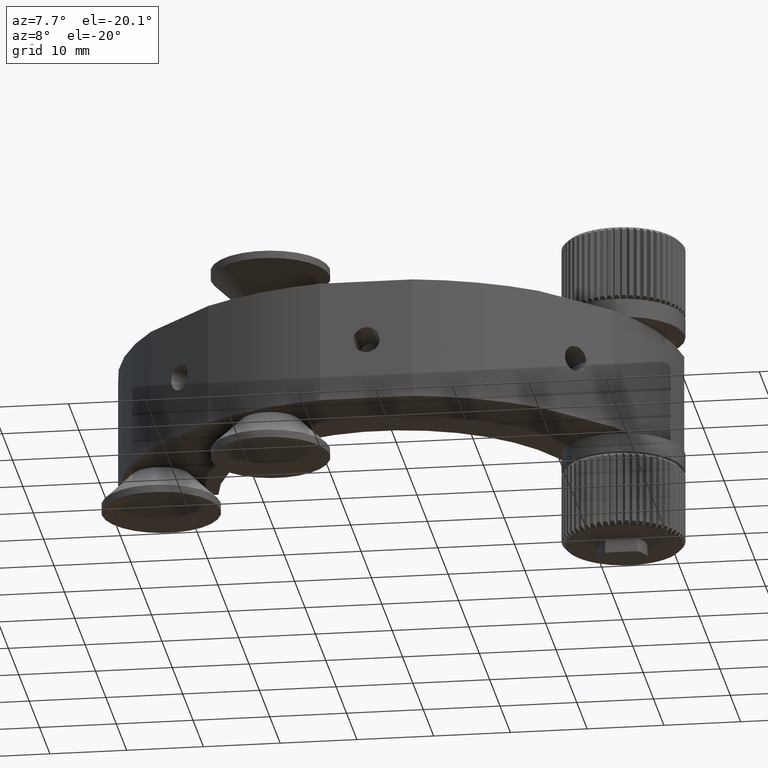
[diagram: clean part render]
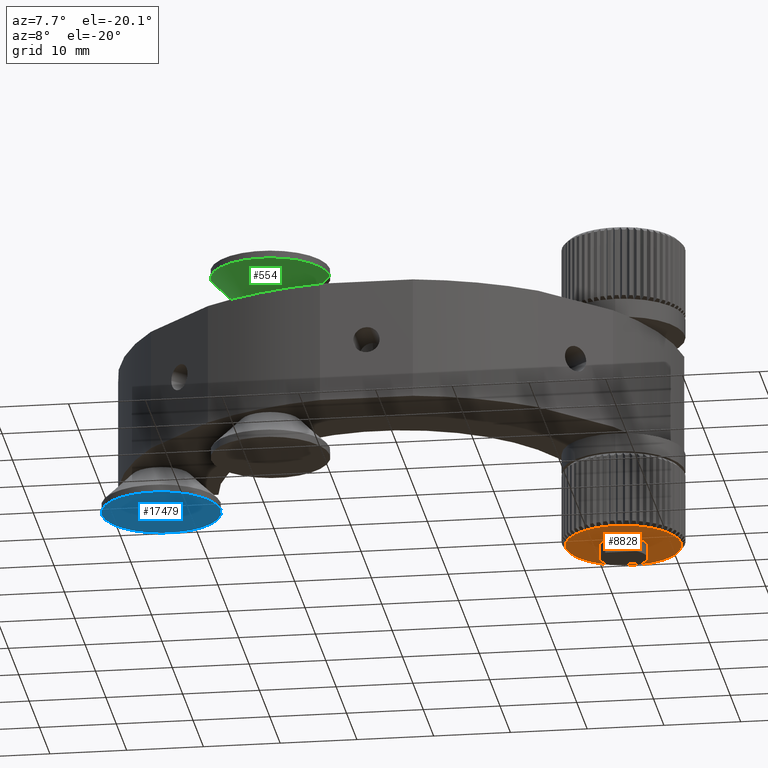
[diagram: same view with three faces highlighted in distinct colors, each labeled with its STEP entity id]
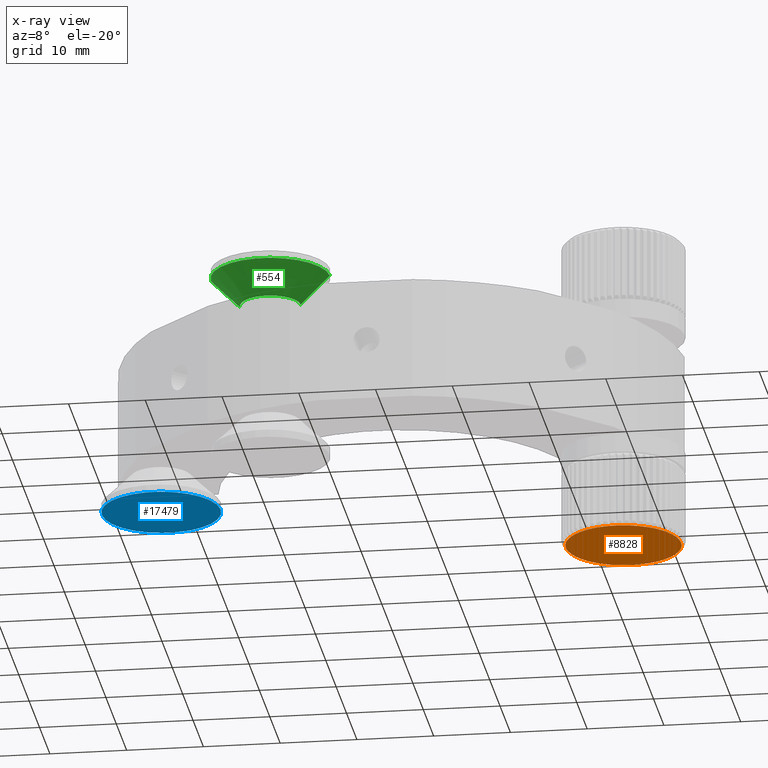
[diagram: x-ray of the same camera — body ghosted, the three highlighted faces saturated]
A machine part, auxiliary view with three faces highlighted in distinct colors.
The next image is the same camera in x-ray (body ghosted, the three faces saturated) — at least one of them is partly hidden behind the body in this view.
Their STEP definitions:

[orange] entity #8828 — the highlighted planar face has unit normal (-0, -0, 1).
#116 = CARTESIAN_POINT ( 'NONE',  ( 39.47517401282137700, -5.823701845742238700, -20.50000000000006000 ) ) ;
#234 = EDGE_CURVE ( 'NONE', #5738, #16654, #6889, .T. ) ;
#277 = CIRCLE ( 'NONE', #14672, 7.500000000000073700 ) ;
#322 = CARTESIAN_POINT ( 'NONE',  ( 32.72957168722360400, -9.101940590081939700, -20.50000000000000000 ) ) ;
#350 = DIRECTION ( 'NONE',  ( -0.3830490080632672500, 0.9237280213470558900, 0.0000000000000000000 ) ) ;
#353 = ORIENTED_EDGE ( 'NONE', *, *, #15208, .T. ) ;
#406 = VERTEX_POINT ( 'NONE', #3169 ) ;
#427 = CARTESIAN_POINT ( 'NONE',  ( 33.11542767546671200, -1.611872822942679500, -20.50000000000000000 ) ) ;
#436 = VERTEX_POINT ( 'NONE', #15813 ) ;
#443 = CIRCLE ( 'NONE', #11785, 7.500000000000073700 ) ;
#471 = DIRECTION ( 'NONE',  ( -0.3830490080632409400, 0.9237280213470668900, 0.0000000000000000000 ) ) ;
#495 = DIRECTION ( 'NONE',  ( -0.3830490080632237800, 0.9237280213470739900, 0.0000000000000000000 ) ) ;
#536 = AXIS2_PLACEMENT_3D ( 'NONE', #3741, #12033, #730 ) ;
#555 = CARTESIAN_POINT ( 'NONE',  ( 39.97954804502963800, -11.02231628542255100, -20.50000000000006000 ) ) ;
#590 = EDGE_CURVE ( 'NONE', #8415, #2034, #15115, .T. ) ;
#620 = AXIS2_PLACEMENT_3D ( 'NONE', #9010, #11620, #10455 ) ;
#626 = CARTESIAN_POINT ( 'NONE',  ( 26.86893603408883300, -4.421881857415523400, -20.50000000000000000 ) ) ;
#656 = ORIENTED_EDGE ( 'NONE', *, *, #9540, .T. ) ;
#712 = EDGE_CURVE ( 'NONE', #12995, #4908, #17945, .T. ) ;
#730 = DIRECTION ( 'NONE',  ( -0.3830490080632737400, 0.9237280213470533400, 0.0000000000000000000 ) ) ;
#772 = VERTEX_POINT ( 'NONE', #14137 ) ;
#776 = DIRECTION ( 'NONE',  ( -0.3830490080632278900, 0.9237280213470722100, 0.0000000000000000000 ) ) ;
#804 = ORIENTED_EDGE ( 'NONE', *, *, #2023, .T. ) ;
#836 = CARTESIAN_POINT ( 'NONE',  ( 32.72957168722360400, -9.101940590081939700, -20.50000000000000000 ) ) ;
#842 = DIRECTION ( 'NONE',  ( -0.3830490080632386100, 0.9237280213470678800, 0.0000000000000000000 ) ) ;
#846 = VERTEX_POINT ( 'NONE', #626 ) ;
#856 = VERTEX_POINT ( 'NONE', #6173 ) ;
#864 = DIRECTION ( 'NONE',  ( -0.3830490080632255600, 0.9237280213470732100, 0.0000000000000000000 ) ) ;
#940 = DIRECTION ( 'NONE',  ( 1.533387788057742900E-030, 1.224606353822375500E-016, -1.000000000000000000 ) ) ;
#979 = CIRCLE ( 'NONE', #13709, 7.500000000000073700 ) ;
#1029 = ORIENTED_EDGE ( 'NONE', *, *, #3494, .T. ) ;
#1058 = EDGE_CURVE ( 'NONE', #2401, #12654, #4888, .T. ) ;
#1071 = DIRECTION ( 'NONE',  ( 1.533387788057742900E-030, 1.224606353822375500E-016, -1.000000000000000000 ) ) ;
#1179 = DIRECTION ( 'NONE',  ( -0.3830490080632385500, 0.9237280213470678800, 0.0000000000000000000 ) ) ;
#1255 = DIRECTION ( 'NONE',  ( -0.3830490080632557000, 0.9237280213470607800, 0.0000000000000000000 ) ) ;
#1269 = EDGE_CURVE ( 'NONE', #7667, #14983, #3365, .T. ) ;
#1276 = VERTEX_POINT ( 'NONE', #7771 ) ;
#1367 = ORIENTED_EDGE ( 'NONE', *, *, #12162, .T. ) ;
#1396 = DIRECTION ( 'NONE',  ( 1.533387788057742900E-030, 1.224606353822375500E-016, -1.000000000000000000 ) ) ;
#1452 = CARTESIAN_POINT ( 'NONE',  ( 32.72957168722360400, -9.101940590081939700, -20.50000000000000000 ) ) ;
#1612 = CARTESIAN_POINT ( 'NONE',  ( 32.72957168722360400, -9.101940590081939700, -20.50000000000000000 ) ) ;
#1628 = DIRECTION ( 'NONE',  ( -0.3830490080632312200, 0.9237280213470709900, 0.0000000000000000000 ) ) ;
#1630 = DIRECTION ( 'NONE',  ( 1.533387788057742900E-030, 1.224606353822375500E-016, -1.000000000000000000 ) ) ;
#1660 = CARTESIAN_POINT ( 'NONE',  ( 35.39587907458436400, -16.11199086922449900, -20.49999999999994300 ) ) ;
#1665 = EDGE_CURVE ( 'NONE', #17967, #6967, #12451, .T. ) ;
#1678 = DIRECTION ( 'NONE',  ( -0.3830490080632385500, 0.9237280213470678800, 0.0000000000000000000 ) ) ;
#1682 = ORIENTED_EDGE ( 'NONE', *, *, #13326, .T. ) ;
#1712 = CIRCLE ( 'NONE', #2135, 7.500000000000072800 ) ;
#1851 = CARTESIAN_POINT ( 'NONE',  ( 32.72957168722360400, -9.101940590081939700, -20.50000000000000000 ) ) ;
#1872 = ORIENTED_EDGE ( 'NONE', *, *, #590, .T. ) ;
#1896 = EDGE_CURVE ( 'NONE', #4908, #1276, #979, .T. ) ;
#1905 = DIRECTION ( 'NONE',  ( 1.533387788057742900E-030, 1.224606353822375500E-016, -1.000000000000000000 ) ) ;
#1912 = ORIENTED_EDGE ( 'NONE', *, *, #2194, .T. ) ;
#1938 = CARTESIAN_POINT ( 'NONE',  ( 25.93361905156124800, -5.929397797015939300, -20.50000000000000000 ) ) ;
#2019 = CARTESIAN_POINT ( 'NONE',  ( 32.72957168722360400, -9.101940590081939700, -20.50000000000000000 ) ) ;
#2023 = EDGE_CURVE ( 'NONE', #16519, #4483, #7462, .T. ) ;
#2034 = VERTEX_POINT ( 'NONE', #2745 ) ;
#2044 = ORIENTED_EDGE ( 'NONE', *, *, #7427, .T. ) ;
#2045 = DIRECTION ( 'NONE',  ( -0.3830490080632270000, 0.9237280213470726600, 0.0000000000000000000 ) ) ;
#2135 = AXIS2_PLACEMENT_3D ( 'NONE', #7429, #5766, #471 ) ;
#2194 = EDGE_CURVE ( 'NONE', #5757, #5738, #4421, .T. ) ;
#2224 = DIRECTION ( 'NONE',  ( -0.3830490080632288400, 0.9237280213470718800, 0.0000000000000000000 ) ) ;
#2249 = DIRECTION ( 'NONE',  ( -0.3830490080632352700, 0.9237280213470692200, 0.0000000000000000000 ) ) ;
#2281 = DIRECTION ( 'NONE',  ( 1.533387788057742900E-030, 1.224606353822375500E-016, -1.000000000000000000 ) ) ;
#2333 = CARTESIAN_POINT ( 'NONE',  ( 26.35654588662725900, -5.147886702622265900, -20.50000000000000000 ) ) ;
#2347 = DIRECTION ( 'NONE',  ( 1.533387788057742900E-030, 1.224606353822375500E-016, -1.000000000000000000 ) ) ;
#2401 = VERTEX_POINT ( 'NONE', #14498 ) ;
#2441 = DIRECTION ( 'NONE',  ( 1.533387788057742900E-030, 1.224606353822375500E-016, -1.000000000000000000 ) ) ;
#2446 = AXIS2_PLACEMENT_3D ( 'NONE', #16163, #11999, #13403 ) ;
#2456 = DIRECTION ( 'NONE',  ( 1.533387788057742900E-030, 1.224606353822375500E-016, -1.000000000000000000 ) ) ;
#2494 = AXIS2_PLACEMENT_3D ( 'NONE', #5104, #17561, #5223 ) ;
#2503 = DIRECTION ( 'NONE',  ( -0.3830490080632255600, 0.9237280213470732100, 0.0000000000000000000 ) ) ;
#2513 = DIRECTION ( 'NONE',  ( 1.533387788057742900E-030, 1.224606353822375500E-016, -1.000000000000000000 ) ) ;
#2555 = ORIENTED_EDGE ( 'NONE', *, *, #15356, .T. ) ;
#2603 = DIRECTION ( 'NONE',  ( 1.533387788057742900E-030, 1.224606353822375500E-016, -1.000000000000000000 ) ) ;
#2639 = CARTESIAN_POINT ( 'NONE',  ( 32.72957168722360400, -9.101940590081939700, -20.50000000000000000 ) ) ;
#2703 = CIRCLE ( 'NONE', #536, 7.500000000000073700 ) ;
#2745 = CARTESIAN_POINT ( 'NONE',  ( 29.85670412674928200, -2.173980429978862100, -20.50000000000000000 ) ) ;
#2752 = CARTESIAN_POINT ( 'NONE',  ( 32.72957168722360400, -9.101940590081939700, -20.50000000000000000 ) ) ;
#2789 = EDGE_CURVE ( 'NONE', #6286, #772, #12671, .T. ) ;
#2827 = CARTESIAN_POINT ( 'NONE',  ( 32.72957168722360400, -9.101940590081939700, -20.50000000000000000 ) ) ;
#2865 = AXIS2_PLACEMENT_3D ( 'NONE', #8929, #4800, #2045 ) ;
#2872 = ORIENTED_EDGE ( 'NONE', *, *, #14065, .T. ) ;
#2876 = CARTESIAN_POINT ( 'NONE',  ( 25.32063916243499300, -10.26715252064653300, -20.50000000000000000 ) ) ;
#2890 = VERTEX_POINT ( 'NONE', #15789 ) ;
#2895 = CARTESIAN_POINT ( 'NONE',  ( 32.72957168722360400, -9.101940590081939700, -20.50000000000000000 ) ) ;
#2902 = DIRECTION ( 'NONE',  ( 1.533387788057742900E-030, 1.224606353822375500E-016, -1.000000000000000000 ) ) ;
#2946 = AXIS2_PLACEMENT_3D ( 'NONE', #6353, #9324, #2224 ) ;
#2967 = DIRECTION ( 'NONE',  ( 1.533387788057742900E-030, 1.224606353822375500E-016, -1.000000000000000000 ) ) ;
#2988 = ORIENTED_EDGE ( 'NONE', *, *, #12365, .T. ) ;
#3016 = ORIENTED_EDGE ( 'NONE', *, *, #6975, .T. ) ;
#3044 = CIRCLE ( 'NONE', #10159, 7.500000000000073700 ) ;
#3048 = CARTESIAN_POINT ( 'NONE',  ( 33.67472057292644600, -16.54214848931807000, -20.49999999999994300 ) ) ;
#3078 = EDGE_CURVE ( 'NONE', #12020, #16900, #12437, .T. ) ;
#3102 = EDGE_CURVE ( 'NONE', #16036, #856, #4639, .T. ) ;
#3103 = VERTEX_POINT ( 'NONE', #8832 ) ;
#3169 = CARTESIAN_POINT ( 'NONE',  ( 36.96784655451375600, -15.28959169121045200, -20.49999999999994300 ) ) ;
#3173 = VERTEX_POINT ( 'NONE', #14825 ) ;
#3201 = VERTEX_POINT ( 'NONE', #16246 ) ;
#3236 = EDGE_CURVE ( 'NONE', #7369, #8661, #11782, .T. ) ;
#3295 = DIRECTION ( 'NONE',  ( 1.533387788057742900E-030, 1.224606353822375500E-016, -1.000000000000000000 ) ) ;
#3304 = ORIENTED_EDGE ( 'NONE', *, *, #13299, .T. ) ;
#3309 = DIRECTION ( 'NONE',  ( 1.533387788057742900E-030, 1.224606353822375500E-016, -1.000000000000000000 ) ) ;
#3330 = DIRECTION ( 'NONE',  ( -0.3830490080632482600, 0.9237280213470638900, 0.0000000000000000000 ) ) ;
#3343 = CARTESIAN_POINT ( 'NONE',  ( 32.22684532409717700, -1.618808478203965300, -20.50000000000000000 ) ) ;
#3365 = CIRCLE ( 'NONE', #16621, 7.500000000000073700 ) ;
#3387 = ORIENTED_EDGE ( 'NONE', *, *, #11390, .T. ) ;
#3395 = DIRECTION ( 'NONE',  ( 1.533387788057742900E-030, 1.224606353822375500E-016, -1.000000000000000000 ) ) ;
#3494 = EDGE_CURVE ( 'NONE', #10359, #846, #5915, .T. ) ;
#3499 = VERTEX_POINT ( 'NONE', #4298 ) ;
#3507 = DIRECTION ( 'NONE',  ( -1.533387788057742900E-030, -1.224606353822375500E-016, 1.000000000000000000 ) ) ;
#3547 = DIRECTION ( 'NONE',  ( -0.3830490080632255600, 0.9237280213470732100, 0.0000000000000000000 ) ) ;
#3558 = CIRCLE ( 'NONE', #11909, 7.500000000000073700 ) ;
#3583 = ORIENTED_EDGE ( 'NONE', *, *, #1269, .T. ) ;
#3584 = EDGE_CURVE ( 'NONE', #2034, #5757, #9845, .T. ) ;
#3712 = CARTESIAN_POINT ( 'NONE',  ( 32.72957168722360400, -9.101940590081939700, -20.50000000000000000 ) ) ;
#3717 = ORIENTED_EDGE ( 'NONE', *, *, #4855, .T. ) ;
#3741 = CARTESIAN_POINT ( 'NONE',  ( 32.72957168722360400, -9.101940590081939700, -20.50000000000000000 ) ) ;
#3773 = CIRCLE ( 'NONE', #13639, 7.500000000000072800 ) ;
#3832 = DIRECTION ( 'NONE',  ( -0.3830490080632385500, 0.9237280213470678800, 0.0000000000000000000 ) ) ;
#3848 = DIRECTION ( 'NONE',  ( 1.533387788057742900E-030, 1.224606353822375500E-016, -1.000000000000000000 ) ) ;
#3879 = ORIENTED_EDGE ( 'NONE', *, *, #16506, .T. ) ;
#3894 = AXIS2_PLACEMENT_3D ( 'NONE', #13050, #4758, #3547 ) ;
#3932 = DIRECTION ( 'NONE',  ( -0.3830490080632352700, 0.9237280213470692200, 0.0000000000000000000 ) ) ;
#3967 = CARTESIAN_POINT ( 'NONE',  ( 32.72957168722360400, -9.101940590081939700, -20.50000000000000000 ) ) ;
#3993 = CARTESIAN_POINT ( 'NONE',  ( 37.91154384130750500, -3.680025375483037200, -20.50000000000000000 ) ) ;
#4036 = EDGE_CURVE ( 'NONE', #10242, #10195, #15039, .T. ) ;
#4046 = ORIENTED_EDGE ( 'NONE', *, *, #15354, .T. ) ;
#4097 = DIRECTION ( 'NONE',  ( -0.3830490080632385500, 0.9237280213470678800, 0.0000000000000000000 ) ) ;
#4123 = ORIENTED_EDGE ( 'NONE', *, *, #8995, .T. ) ;
#4130 = ORIENTED_EDGE ( 'NONE', *, *, #2789, .T. ) ;
#4202 = CIRCLE ( 'NONE', #4812, 7.500000000000074600 ) ;
#4298 = CARTESIAN_POINT ( 'NONE',  ( 40.05646425276273700, -7.499865269428233300, -20.50000000000006000 ) ) ;
#4350 = CARTESIAN_POINT ( 'NONE',  ( 30.48322683093668700, -1.946248115790224100, -20.50000000000000000 ) ) ;
#4421 = CIRCLE ( 'NONE', #15332, 7.500000000000073700 ) ;
#4466 = DIRECTION ( 'NONE',  ( -0.3830490080632639700, 0.9237280213470572300, 0.0000000000000000000 ) ) ;
#4483 = VERTEX_POINT ( 'NONE', #7974 ) ;
#4500 = VERTEX_POINT ( 'NONE', #7896 ) ;
#4507 = DIRECTION ( 'NONE',  ( -0.3830490080632344400, 0.9237280213470695500, 0.0000000000000000000 ) ) ;
#4516 = CARTESIAN_POINT ( 'NONE',  ( 32.72957168722360400, -9.101940590081939700, -20.50000000000000000 ) ) ;
#4531 = VERTEX_POINT ( 'NONE', #11991 ) ;
#4547 = DIRECTION ( 'NONE',  ( -0.3830490080632515400, 0.9237280213470624400, 0.0000000000000000000 ) ) ;
#4593 = CIRCLE ( 'NONE', #10249, 7.500000000000073700 ) ;
#4628 = DIRECTION ( 'NONE',  ( -0.3830490080632385500, 0.9237280213470678800, 0.0000000000000000000 ) ) ;
#4639 = CIRCLE ( 'NONE', #10561, 7.500000000000073700 ) ;
#4649 = CARTESIAN_POINT ( 'NONE',  ( 31.02488027689450700, -16.40564014548203500, -20.49999999999994300 ) ) ;
#4758 = DIRECTION ( 'NONE',  ( 1.533387788057742900E-030, 1.224606353822375500E-016, -1.000000000000000000 ) ) ;
#4770 = AXIS2_PLACEMENT_3D ( 'NONE', #1851, #11566, #4466 ) ;
#4782 = ORIENTED_EDGE ( 'NONE', *, *, #15309, .T. ) ;
#4798 = VERTEX_POINT ( 'NONE', #7630 ) ;
#4800 = DIRECTION ( 'NONE',  ( 1.533387788057742900E-030, 1.224606353822375500E-016, -1.000000000000000000 ) ) ;
#4812 = AXIS2_PLACEMENT_3D ( 'NONE', #9150, #17673, #864 ) ;
#4837 = ORIENTED_EDGE ( 'NONE', *, *, #7514, .T. ) ;
#4855 = EDGE_CURVE ( 'NONE', #14058, #4798, #15221, .T. ) ;
#4881 = CARTESIAN_POINT ( 'NONE',  ( 32.72957168722360400, -9.101940590081939700, -20.50000000000000000 ) ) ;
#4887 = CARTESIAN_POINT ( 'NONE',  ( 28.58840031310287300, -15.35499581534288000, -20.49999999999994300 ) ) ;
#4888 = CIRCLE ( 'NONE', #11037, 7.500000000000073700 ) ;
#4908 = VERTEX_POINT ( 'NONE', #16552 ) ;
#4909 = CARTESIAN_POINT ( 'NONE',  ( 30.17301363635605700, -16.15275692101443600, -20.49999999999994300 ) ) ;
#4913 = FACE_OUTER_BOUND ( 'NONE', #17149, .T. ) ;
#4952 = CARTESIAN_POINT ( 'NONE',  ( 28.13218003103875700, -3.176234728360166400, -20.50000000000000000 ) ) ;
#5075 = EDGE_CURVE ( 'NONE', #406, #17429, #17411, .T. ) ;
#5104 = CARTESIAN_POINT ( 'NONE',  ( 32.72957168722360400, -9.101940590081939700, -20.50000000000000000 ) ) ;
#5131 = CARTESIAN_POINT ( 'NONE',  ( 32.72957168722360400, -9.101940590081939700, -20.50000000000000000 ) ) ;
#5181 = DIRECTION ( 'NONE',  ( -0.3830490080632385500, 0.9237280213470678800, 0.0000000000000000000 ) ) ;
#5223 = DIRECTION ( 'NONE',  ( -0.3830490080632214500, 0.9237280213470749900, 0.0000000000000000000 ) ) ;
#5231 = CARTESIAN_POINT ( 'NONE',  ( 32.72957168722360400, -9.101940590081939700, -20.50000000000000000 ) ) ;
#5232 = AXIS2_PLACEMENT_3D ( 'NONE', #4881, #3309, #17275 ) ;
#5237 = DIRECTION ( 'NONE',  ( 1.533387788057742900E-030, 1.224606353822375500E-016, -1.000000000000000000 ) ) ;
#5283 = AXIS2_PLACEMENT_3D ( 'NONE', #12331, #12400, #4097 ) ;
#5312 = EDGE_CURVE ( 'NONE', #8684, #12774, #17860, .T. ) ;
#5401 = ORIENTED_EDGE ( 'NONE', *, *, #1665, .T. ) ;
#5443 = CARTESIAN_POINT ( 'NONE',  ( 33.99859345456810200, -1.710081300701001000, -20.50000000000000000 ) ) ;
#5497 = CARTESIAN_POINT ( 'NONE',  ( 25.60609249458804700, -6.755444437924718500, -20.50000000000000000 ) ) ;
#5592 = AXIS2_PLACEMENT_3D ( 'NONE', #2639, #5237, #5181 ) ;
#5632 = ORIENTED_EDGE ( 'NONE', *, *, #13777, .T. ) ;
#5669 = CIRCLE ( 'NONE', #8443, 7.500000000000074600 ) ;
#5674 = DIRECTION ( 'NONE',  ( -0.3830490080632302800, 0.9237280213470713300, 0.0000000000000000000 ) ) ;
#5681 = AXIS2_PLACEMENT_3D ( 'NONE', #14772, #2456, #10832 ) ;
#5738 = VERTEX_POINT ( 'NONE', #10041 ) ;
#5757 = VERTEX_POINT ( 'NONE', #4350 ) ;
#5766 = DIRECTION ( 'NONE',  ( 1.533387788057742900E-030, 1.224606353822375500E-016, -1.000000000000000000 ) ) ;
#5851 = ORIENTED_EDGE ( 'NONE', *, *, #3236, .T. ) ;
#5867 = DIRECTION ( 'NONE',  ( -0.3830490080632385500, 0.9237280213470678800, 0.0000000000000000000 ) ) ;
#5886 = CARTESIAN_POINT ( 'NONE',  ( 32.72957168722360400, -9.101940590081939700, -20.50000000000000000 ) ) ;
#5901 = CARTESIAN_POINT ( 'NONE',  ( 32.72957168722360400, -9.101940590081939700, -20.50000000000000000 ) ) ;
#5907 = AXIS2_PLACEMENT_3D ( 'NONE', #9767, #7091, #12640 ) ;
#5915 = CIRCLE ( 'NONE', #16986, 7.500000000000073700 ) ;
#5922 = DIRECTION ( 'NONE',  ( -0.3830490080632482600, 0.9237280213470638900, 0.0000000000000000000 ) ) ;
#5928 = CIRCLE ( 'NONE', #15268, 7.500000000000074600 ) ;
#5957 = EDGE_CURVE ( 'NONE', #4798, #2890, #13020, .T. ) ;
#5969 = DIRECTION ( 'NONE',  ( -0.3830490080632385500, 0.9237280213470678800, 0.0000000000000000000 ) ) ;
#5974 = AXIS2_PLACEMENT_3D ( 'NONE', #15008, #17829, #2503 ) ;
#6049 = CARTESIAN_POINT ( 'NONE',  ( 32.72957168722360400, -9.101940590081939700, -20.50000000000000000 ) ) ;
#6088 = VERTEX_POINT ( 'NONE', #11112 ) ;
#6173 = CARTESIAN_POINT ( 'NONE',  ( 34.54806364420159800, -16.37814062872898900, -20.49999999999994300 ) ) ;
#6233 = EDGE_CURVE ( 'NONE', #1276, #406, #3044, .T. ) ;
#6286 = VERTEX_POINT ( 'NONE', #555 ) ;
#6306 = AXIS2_PLACEMENT_3D ( 'NONE', #2895, #15271, #5674 ) ;
#6326 = CARTESIAN_POINT ( 'NONE',  ( 40.15579007991817000, -10.15135965985634100, -20.50000000000006000 ) ) ;
#6353 = CARTESIAN_POINT ( 'NONE',  ( 32.72957168722360400, -9.101940590081939700, -20.50000000000000000 ) ) ;
#6363 = AXIS2_PLACEMENT_3D ( 'NONE', #5901, #3507, #842 ) ;
#6377 = DIRECTION ( 'NONE',  ( -0.3830490080632473200, 0.9237280213470642200, 0.0000000000000000000 ) ) ;
#6632 = AXIS2_PLACEMENT_3D ( 'NONE', #11460, #12846, #1628 ) ;
#6633 = CARTESIAN_POINT ( 'NONE',  ( 32.72957168722360400, -9.101940590081939700, -20.50000000000000000 ) ) ;
#6677 = DIRECTION ( 'NONE',  ( 1.533387788057742900E-030, 1.224606353822375500E-016, -1.000000000000000000 ) ) ;
#6721 = EDGE_LOOP ( 'NONE', ( #8053, #2044 ) ) ;
#6741 = ORIENTED_EDGE ( 'NONE', *, *, #5075, .T. ) ;
#6765 = AXIS2_PLACEMENT_3D ( 'NONE', #322, #1630, #5867 ) ;
#6808 = CIRCLE ( 'NONE', #620, 7.500000000000074600 ) ;
#6870 = CARTESIAN_POINT ( 'NONE',  ( 25.80161152712055600, -11.97480815055623000, -20.50000000000000000 ) ) ;
#6889 = CIRCLE ( 'NONE', #5283, 7.500000000000073700 ) ;
#6953 = EDGE_CURVE ( 'NONE', #16900, #3201, #443, .T. ) ;
#6967 = VERTEX_POINT ( 'NONE', #7307 ) ;
#6975 = EDGE_CURVE ( 'NONE', #14983, #3173, #1712, .T. ) ;
#7012 = DIRECTION ( 'NONE',  ( 1.533387788057742900E-030, 1.224606353822375500E-016, -1.000000000000000000 ) ) ;
#7017 = CIRCLE ( 'NONE', #5592, 7.500000000000073700 ) ;
#7040 = CARTESIAN_POINT ( 'NONE',  ( 37.23390497139995100, -3.105192999507403700, -20.50000000000000000 ) ) ;
#7091 = DIRECTION ( 'NONE',  ( 1.533387788057742900E-030, 1.224606353822375500E-016, -1.000000000000000000 ) ) ;
#7097 = AXIS2_PLACEMENT_3D ( 'NONE', #2752, #13543, #15018 ) ;
#7213 = VERTEX_POINT ( 'NONE', #8245 ) ;
#7307 = CARTESIAN_POINT ( 'NONE',  ( 26.67023216509954900, -13.52171485531602900, -20.50000000000000000 ) ) ;
#7369 = VERTEX_POINT ( 'NONE', #427 ) ;
#7374 = DIRECTION ( 'NONE',  ( 1.533387788057742900E-030, 1.224606353822375500E-016, -1.000000000000000000 ) ) ;
#7427 = EDGE_CURVE ( 'NONE', #436, #17128, #9072, .T. ) ;
#7429 = CARTESIAN_POINT ( 'NONE',  ( 32.72957168722360400, -9.101940590081939700, -20.50000000000000000 ) ) ;
#7462 = CIRCLE ( 'NONE', #5907, 7.500000000000073700 ) ;
#7507 = DIRECTION ( 'NONE',  ( 1.533387788057742900E-030, 1.224606353822375500E-016, -1.000000000000000000 ) ) ;
#7514 = EDGE_CURVE ( 'NONE', #2890, #16106, #12982, .T. ) ;
#7521 = CARTESIAN_POINT ( 'NONE',  ( 32.72957168722360400, -9.101940590081939700, -20.50000000000000000 ) ) ;
#7630 = CARTESIAN_POINT ( 'NONE',  ( 25.23482843864553600, -9.382696067132807000, -20.50000000000000000 ) ) ;
#7642 = CIRCLE ( 'NONE', #10413, 7.500000000000073700 ) ;
#7643 = ORIENTED_EDGE ( 'NONE', *, *, #5957, .T. ) ;
#7650 = CARTESIAN_POINT ( 'NONE',  ( 29.65266727073086300, -2.262155563360011400, -20.50000000000000000 ) ) ;
#7667 = VERTEX_POINT ( 'NONE', #9619 ) ;
#7707 = CARTESIAN_POINT ( 'NONE',  ( 39.32564538005979700, -12.67150804828676100, -20.50000000000006000 ) ) ;
#7716 = AXIS2_PLACEMENT_3D ( 'NONE', #3967, #2513, #1255 ) ;
#7771 = CARTESIAN_POINT ( 'NONE',  ( 37.66993162643749600, -14.74488695443907800, -20.49999999999994300 ) ) ;
#7818 = ORIENTED_EDGE ( 'NONE', *, *, #13539, .T. ) ;
#7894 = ORIENTED_EDGE ( 'NONE', *, *, #12166, .T. ) ;
#7896 = CARTESIAN_POINT ( 'NONE',  ( 27.87789812793137800, -14.82131675134854700, -20.49999999999994300 ) ) ;
#7930 = AXIS2_PLACEMENT_3D ( 'NONE', #2827, #7012, #15258 ) ;
#7934 = AXIS2_PLACEMENT_3D ( 'NONE', #7521, #3395, #8921 ) ;
#7936 = DIRECTION ( 'NONE',  ( -0.3830490080632409400, 0.9237280213470668900, 0.0000000000000000000 ) ) ;
#7956 = AXIS2_PLACEMENT_3D ( 'NONE', #3712, #15727, #5922 ) ;
#7974 = CARTESIAN_POINT ( 'NONE',  ( 25.51045505829211600, -11.13525195283119000, -20.50000000000000000 ) ) ;
#8039 = ORIENTED_EDGE ( 'NONE', *, *, #15808, .T. ) ;
#8053 = ORIENTED_EDGE ( 'NONE', *, *, #10403, .T. ) ;
#8245 = CARTESIAN_POINT ( 'NONE',  ( 36.49303513580288400, -2.614541814670645600, -20.50000000000000000 ) ) ;
#8379 = DIRECTION ( 'NONE',  ( 1.533387788057742900E-030, 1.224606353822375500E-016, -1.000000000000000000 ) ) ;
#8415 = VERTEX_POINT ( 'NONE', #7650 ) ;
#8417 = VERTEX_POINT ( 'NONE', #7707 ) ;
#8425 = AXIS2_PLACEMENT_3D ( 'NONE', #17848, #10707, #10836 ) ;
#8443 = AXIS2_PLACEMENT_3D ( 'NONE', #17993, #15182, #17887 ) ;
#8646 = CARTESIAN_POINT ( 'NONE',  ( 25.37856397062044400, -7.614430741226740000, -20.50000000000000000 ) ) ;
#8657 = DIRECTION ( 'NONE',  ( -0.3830490080632385500, 0.9237280213470677700, 1.131203204145396700E-016 ) ) ;
#8661 = VERTEX_POINT ( 'NONE', #5443 ) ;
#8676 = CARTESIAN_POINT ( 'NONE',  ( 32.72957168722360400, -9.101940590081939700, -20.50000000000000000 ) ) ;
#8684 = VERTEX_POINT ( 'NONE', #5497 ) ;
#8708 = DIRECTION ( 'NONE',  ( -0.3830490080632418200, 0.9237280213470664400, 0.0000000000000000000 ) ) ;
#8808 = CARTESIAN_POINT ( 'NONE',  ( 35.69933452300137600, -2.214959488087151900, -20.50000000000000000 ) ) ;
#8828 = ADVANCED_FACE ( 'NONE', ( #4913, #10114 ), #16856, .F. ) ;
#8832 = CARTESIAN_POINT ( 'NONE',  ( 31.90067704810432000, -16.55599543809853800, -20.49999999999994300 ) ) ;
#8880 = AXIS2_PLACEMENT_3D ( 'NONE', #13325, #2281, #10474 ) ;
#8893 = DIRECTION ( 'NONE',  ( 1.533387788057742900E-030, 1.224606353822375500E-016, -1.000000000000000000 ) ) ;
#8921 = DIRECTION ( 'NONE',  ( -0.3830490080632533700, 0.9237280213470616700, 0.0000000000000000000 ) ) ;
#8929 = CARTESIAN_POINT ( 'NONE',  ( 32.72957168722360400, -9.101940590081939700, -20.50000000000000000 ) ) ;
#8995 = EDGE_CURVE ( 'NONE', #6088, #12300, #12057, .T. ) ;
#9010 = CARTESIAN_POINT ( 'NONE',  ( 32.72957168722360400, -9.101940590081939700, -20.50000000000000000 ) ) ;
#9063 = DIRECTION ( 'NONE',  ( 1.533387788057742900E-030, 1.224606353822375500E-016, -1.000000000000000000 ) ) ;
#9072 = CIRCLE ( 'NONE', #6363, 2.500000000000015100 ) ;
#9135 = CARTESIAN_POINT ( 'NONE',  ( 27.46359665944863300, -3.761574778000145200, -20.50000000000000000 ) ) ;
#9150 = CARTESIAN_POINT ( 'NONE',  ( 32.72957168722360400, -9.101940590081939700, -20.50000000000000000 ) ) ;
#9217 = CARTESIAN_POINT ( 'NONE',  ( 32.72957168722360400, -9.101940590081939700, -20.50000000000000000 ) ) ;
#9324 = DIRECTION ( 'NONE',  ( 1.533387788057742900E-030, 1.224606353822375500E-016, -1.000000000000000000 ) ) ;
#9372 = CARTESIAN_POINT ( 'NONE',  ( 32.72957168722360400, -9.101940590081939700, -20.50000000000000000 ) ) ;
#9456 = DIRECTION ( 'NONE',  ( 1.533387788057742900E-030, 1.224606353822375500E-016, -1.000000000000000000 ) ) ;
#9503 = ORIENTED_EDGE ( 'NONE', *, *, #1896, .T. ) ;
#9514 = DIRECTION ( 'NONE',  ( -0.3830490080632335000, 0.9237280213470699900, 0.0000000000000000000 ) ) ;
#9540 = EDGE_CURVE ( 'NONE', #12654, #7213, #15119, .T. ) ;
#9619 = CARTESIAN_POINT ( 'NONE',  ( 39.04009958643668200, -5.048887711910529300, -20.50000000000000000 ) ) ;
#9699 = CARTESIAN_POINT ( 'NONE',  ( 38.85716411002245300, -13.42659214830708700, -20.50000000000006000 ) ) ;
#9711 = ORIENTED_EDGE ( 'NONE', *, *, #11856, .T. ) ;
#9767 = CARTESIAN_POINT ( 'NONE',  ( 32.72957168722360400, -9.101940590081939700, -20.50000000000000000 ) ) ;
#9783 = EDGE_CURVE ( 'NONE', #4500, #17967, #17513, .T. ) ;
#9792 = DIRECTION ( 'NONE',  ( -0.3830490080632385500, 0.9237280213470678800, 0.0000000000000000000 ) ) ;
#9845 = CIRCLE ( 'NONE', #13487, 7.500000000000073700 ) ;
#9877 = ORIENTED_EDGE ( 'NONE', *, *, #3102, .T. ) ;
#9968 = DIRECTION ( 'NONE',  ( 1.533387788057742900E-030, 1.224606353822375500E-016, -1.000000000000000000 ) ) ;
#10013 = CARTESIAN_POINT ( 'NONE',  ( 32.72957168722360400, -9.101940590081939700, -20.50000000000000000 ) ) ;
#10041 = CARTESIAN_POINT ( 'NONE',  ( 31.34532014887613700, -1.730790905088124500, -20.50000000000000000 ) ) ;
#10085 = AXIS2_PLACEMENT_3D ( 'NONE', #16926, #12840, #495 ) ;
#10114 = FACE_BOUND ( 'NONE', #6721, .T. ) ;
#10159 = AXIS2_PLACEMENT_3D ( 'NONE', #6049, #10170, #3330 ) ;
#10170 = DIRECTION ( 'NONE',  ( 1.533387788057742900E-030, 1.224606353822375500E-016, -1.000000000000000000 ) ) ;
#10192 = CARTESIAN_POINT ( 'NONE',  ( 32.72957168722360400, -9.101940590081939700, -20.50000000000000000 ) ) ;
#10195 = VERTEX_POINT ( 'NONE', #10460 ) ;
#10219 = VERTEX_POINT ( 'NONE', #4887 ) ;
#10236 = AXIS2_PLACEMENT_3D ( 'NONE', #5131, #12158, #14832 ) ;
#10242 = VERTEX_POINT ( 'NONE', #4952 ) ;
#10249 = AXIS2_PLACEMENT_3D ( 'NONE', #17601, #2347, #12044 ) ;
#10297 = CARTESIAN_POINT ( 'NONE',  ( 40.19452002555458100, -8.377684899009565800, -20.50000000000006000 ) ) ;
#10359 = VERTEX_POINT ( 'NONE', #2333 ) ;
#10382 = ORIENTED_EDGE ( 'NONE', *, *, #15469, .T. ) ;
#10387 = AXIS2_PLACEMENT_3D ( 'NONE', #5231, #2441, #3832 ) ;
#10403 = EDGE_CURVE ( 'NONE', #17128, #436, #12264, .T. ) ;
#10413 = AXIS2_PLACEMENT_3D ( 'NONE', #11047, #11156, #8708 ) ;
#10455 = DIRECTION ( 'NONE',  ( -0.3830490080632352700, 0.9237280213470692200, 0.0000000000000000000 ) ) ;
#10460 = CARTESIAN_POINT ( 'NONE',  ( 28.86530070387492600, -2.674078599711307500, -20.50000000000000000 ) ) ;
#10474 = DIRECTION ( 'NONE',  ( -0.3830490080632427100, 0.9237280213470661100, 0.0000000000000000000 ) ) ;
#10561 = AXIS2_PLACEMENT_3D ( 'NONE', #2019, #9063, #776 ) ;
#10609 = AXIS2_PLACEMENT_3D ( 'NONE', #10013, #16722, #9792 ) ;
#10625 = ORIENTED_EDGE ( 'NONE', *, *, #11803, .T. ) ;
#10632 = EDGE_CURVE ( 'NONE', #4531, #10219, #13556, .T. ) ;
#10641 = AXIS2_PLACEMENT_3D ( 'NONE', #11898, #1071, #2249 ) ;
#10707 = DIRECTION ( 'NONE',  ( 1.533387788057742900E-030, 1.224606353822375500E-016, -1.000000000000000000 ) ) ;
#10776 = ORIENTED_EDGE ( 'NONE', *, *, #14654, .T. ) ;
#10832 = DIRECTION ( 'NONE',  ( -0.3830490080632427100, 0.9237280213470661100, 0.0000000000000000000 ) ) ;
#10836 = DIRECTION ( 'NONE',  ( -0.3830490080631769900, 0.9237280213470933100, 0.0000000000000000000 ) ) ;
#10875 = CARTESIAN_POINT ( 'NONE',  ( 32.72957168722360400, -9.101940590081939700, -20.50000000000000000 ) ) ;
#10929 = CIRCLE ( 'NONE', #6632, 7.500000000000072800 ) ;
#10977 = ORIENTED_EDGE ( 'NONE', *, *, #234, .T. ) ;
#11037 = AXIS2_PLACEMENT_3D ( 'NONE', #9217, #940, #16225 ) ;
#11047 = CARTESIAN_POINT ( 'NONE',  ( 32.72957168722360400, -9.101940590081939700, -20.50000000000000000 ) ) ;
#11112 = CARTESIAN_POINT ( 'NONE',  ( 40.22778428704473400, -9.265671490905399200, -20.50000000000006000 ) ) ;
#11156 = DIRECTION ( 'NONE',  ( 1.533387788057742900E-030, 1.224606353822375500E-016, -1.000000000000000000 ) ) ;
#11274 = CARTESIAN_POINT ( 'NONE',  ( 32.72957168722360400, -9.101940590081939700, -20.50000000000000000 ) ) ;
#11382 = DIRECTION ( 'NONE',  ( -1.060031841390734800E-030, -1.224606353822387100E-016, 1.000000000000000000 ) ) ;
#11383 = CARTESIAN_POINT ( 'NONE',  ( 32.72957168722360400, -9.101940590081939700, -20.50000000000000000 ) ) ;
#11390 = EDGE_CURVE ( 'NONE', #16654, #7369, #15733, .T. ) ;
#11460 = CARTESIAN_POINT ( 'NONE',  ( 32.72957168722360400, -9.101940590081939700, -20.50000000000000000 ) ) ;
#11484 = EDGE_CURVE ( 'NONE', #10195, #8415, #15278, .T. ) ;
#11486 = EDGE_CURVE ( 'NONE', #11716, #16712, #4202, .T. ) ;
#11488 = CARTESIAN_POINT ( 'NONE',  ( 32.72957168722360400, -9.101940590081939700, -20.50000000000000000 ) ) ;
#11504 = ORIENTED_EDGE ( 'NONE', *, *, #712, .T. ) ;
#11518 = ORIENTED_EDGE ( 'NONE', *, *, #10632, .T. ) ;
#11530 = ORIENTED_EDGE ( 'NONE', *, *, #17027, .T. ) ;
#11539 = CIRCLE ( 'NONE', #6306, 7.500000000000072800 ) ;
#11566 = DIRECTION ( 'NONE',  ( 1.533387788057742900E-030, 1.224606353822375500E-016, -1.000000000000000000 ) ) ;
#11576 = CIRCLE ( 'NONE', #10387, 7.500000000000073700 ) ;
#11620 = DIRECTION ( 'NONE',  ( 1.533387788057742900E-030, 1.224606353822375500E-016, -1.000000000000000000 ) ) ;
#11621 = DIRECTION ( 'NONE',  ( 1.533387788057742900E-030, 1.224606353822375500E-016, -1.000000000000000000 ) ) ;
#11693 = EDGE_CURVE ( 'NONE', #17429, #16036, #16594, .T. ) ;
#11705 = ORIENTED_EDGE ( 'NONE', *, *, #3078, .T. ) ;
#11716 = VERTEX_POINT ( 'NONE', #4649 ) ;
#11782 = CIRCLE ( 'NONE', #7097, 7.500000000000074600 ) ;
#11785 = AXIS2_PLACEMENT_3D ( 'NONE', #10192, #3295, #4507 ) ;
#11803 = EDGE_CURVE ( 'NONE', #846, #14761, #17905, .T. ) ;
#11856 = EDGE_CURVE ( 'NONE', #14455, #6088, #6808, .T. ) ;
#11898 = CARTESIAN_POINT ( 'NONE',  ( 32.72957168722360400, -9.101940590081939700, -20.50000000000000000 ) ) ;
#11909 = AXIS2_PLACEMENT_3D ( 'NONE', #6633, #12138, #6377 ) ;
#11922 = ORIENTED_EDGE ( 'NONE', *, *, #11693, .T. ) ;
#11991 = CARTESIAN_POINT ( 'NONE',  ( 29.35703546680742100, -15.80089569084070600, -20.49999999999994300 ) ) ;
#11999 = DIRECTION ( 'NONE',  ( 1.533387788057742900E-030, 1.224606353822375500E-016, -1.000000000000000000 ) ) ;
#12005 = CARTESIAN_POINT ( 'NONE',  ( 36.20626539386640300, -15.74743537002052600, -20.49999999999994300 ) ) ;
#12020 = VERTEX_POINT ( 'NONE', #7040 ) ;
#12033 = DIRECTION ( 'NONE',  ( 1.533387788057742900E-030, 1.224606353822375500E-016, -1.000000000000000000 ) ) ;
#12044 = DIRECTION ( 'NONE',  ( -0.3830490080632385500, 0.9237280213470678800, 0.0000000000000000000 ) ) ;
#12057 = CIRCLE ( 'NONE', #2446, 7.500000000000074600 ) ;
#12138 = DIRECTION ( 'NONE',  ( 1.533387788057742900E-030, 1.224606353822375500E-016, -1.000000000000000000 ) ) ;
#12158 = DIRECTION ( 'NONE',  ( -1.533387788057742900E-030, -1.224606353822375500E-016, 1.000000000000000000 ) ) ;
#12161 = ORIENTED_EDGE ( 'NONE', *, *, #3584, .T. ) ;
#12162 = EDGE_CURVE ( 'NONE', #14492, #16519, #10929, .T. ) ;
#12166 = EDGE_CURVE ( 'NONE', #3103, #11716, #14817, .T. ) ;
#12170 = CARTESIAN_POINT ( 'NONE',  ( 32.72957168722360400, -9.101940590081939700, -20.50000000000000000 ) ) ;
#12264 = CIRCLE ( 'NONE', #10236, 2.500000000000015100 ) ;
#12300 = VERTEX_POINT ( 'NONE', #6326 ) ;
#12331 = CARTESIAN_POINT ( 'NONE',  ( 32.72957168722360400, -9.101940590081939700, -20.50000000000000000 ) ) ;
#12365 = EDGE_CURVE ( 'NONE', #10219, #4500, #7017, .T. ) ;
#12400 = DIRECTION ( 'NONE',  ( 1.533387788057742900E-030, 1.224606353822375500E-016, -1.000000000000000000 ) ) ;
#12437 = CIRCLE ( 'NONE', #5232, 7.500000000000073700 ) ;
#12451 = CIRCLE ( 'NONE', #10085, 7.500000000000073700 ) ;
#12553 = VERTEX_POINT ( 'NONE', #3048 ) ;
#12597 = CARTESIAN_POINT ( 'NONE',  ( 26.19002137032094900, -12.77403558513566200, -20.50000000000000000 ) ) ;
#12640 = DIRECTION ( 'NONE',  ( -0.3830490080632385500, 0.9237280213470678800, 0.0000000000000000000 ) ) ;
#12654 = VERTEX_POINT ( 'NONE', #8808 ) ;
#12671 = CIRCLE ( 'NONE', #6765, 7.500000000000073700 ) ;
#12774 = VERTEX_POINT ( 'NONE', #1938 ) ;
#12840 = DIRECTION ( 'NONE',  ( 1.533387788057742900E-030, 1.224606353822375500E-016, -1.000000000000000000 ) ) ;
#12846 = DIRECTION ( 'NONE',  ( 1.533387788057742900E-030, 1.224606353822375500E-016, -1.000000000000000000 ) ) ;
#12871 = CIRCLE ( 'NONE', #3894, 7.500000000000074600 ) ;
#12982 = CIRCLE ( 'NONE', #5681, 7.500000000000073700 ) ;
#12995 = VERTEX_POINT ( 'NONE', #9699 ) ;
#13020 = CIRCLE ( 'NONE', #2494, 7.500000000000073700 ) ;
#13050 = CARTESIAN_POINT ( 'NONE',  ( 32.72957168722360400, -9.101940590081939700, -20.50000000000000000 ) ) ;
#13154 = ORIENTED_EDGE ( 'NONE', *, *, #11486, .T. ) ;
#13202 = ORIENTED_EDGE ( 'NONE', *, *, #6953, .T. ) ;
#13276 = ORIENTED_EDGE ( 'NONE', *, *, #4036, .T. ) ;
#13299 = EDGE_CURVE ( 'NONE', #4483, #14058, #4593, .T. ) ;
#13325 = CARTESIAN_POINT ( 'NONE',  ( 32.72957168722360400, -9.101940590081939700, -20.50000000000000000 ) ) ;
#13326 = EDGE_CURVE ( 'NONE', #7213, #12020, #15464, .T. ) ;
#13403 = DIRECTION ( 'NONE',  ( -0.3830490080632352700, 0.9237280213470692200, 0.0000000000000000000 ) ) ;
#13457 = EDGE_CURVE ( 'NONE', #772, #8417, #11539, .T. ) ;
#13487 = AXIS2_PLACEMENT_3D ( 'NONE', #14225, #11621, #5969 ) ;
#13539 = EDGE_CURVE ( 'NONE', #14761, #10242, #277, .T. ) ;
#13543 = DIRECTION ( 'NONE',  ( 1.533387788057742900E-030, 1.224606353822375500E-016, -1.000000000000000000 ) ) ;
#13556 = CIRCLE ( 'NONE', #13964, 7.500000000000073700 ) ;
#13639 = AXIS2_PLACEMENT_3D ( 'NONE', #17232, #7507, #15902 ) ;
#13709 = AXIS2_PLACEMENT_3D ( 'NONE', #14992, #6677, #15050 ) ;
#13774 = CIRCLE ( 'NONE', #10609, 7.500000000000073700 ) ;
#13777 = EDGE_CURVE ( 'NONE', #3201, #7667, #5928, .T. ) ;
#13859 = ORIENTED_EDGE ( 'NONE', *, *, #1058, .T. ) ;
#13899 = VERTEX_POINT ( 'NONE', #17768 ) ;
#13927 = ORIENTED_EDGE ( 'NONE', *, *, #6233, .T. ) ;
#13955 = AXIS2_PLACEMENT_3D ( 'NONE', #8676, #2967, #4547 ) ;
#13964 = AXIS2_PLACEMENT_3D ( 'NONE', #4516, #9968, #350 ) ;
#13981 = DIRECTION ( 'NONE',  ( 1.533387788057742900E-030, 1.224606353822375500E-016, -1.000000000000000000 ) ) ;
#13984 = AXIS2_PLACEMENT_3D ( 'NONE', #10875, #8379, #16355 ) ;
#14048 = ORIENTED_EDGE ( 'NONE', *, *, #11484, .T. ) ;
#14058 = VERTEX_POINT ( 'NONE', #2876 ) ;
#14065 = EDGE_CURVE ( 'NONE', #12774, #10359, #13774, .T. ) ;
#14137 = CARTESIAN_POINT ( 'NONE',  ( 39.70153223422161700, -11.86631504574160800, -20.50000000000006000 ) ) ;
#14225 = CARTESIAN_POINT ( 'NONE',  ( 32.72957168722360400, -9.101940590081939700, -20.50000000000000000 ) ) ;
#14455 = VERTEX_POINT ( 'NONE', #10297 ) ;
#14479 = AXIS2_PLACEMENT_3D ( 'NONE', #16620, #1396, #3932 ) ;
#14492 = VERTEX_POINT ( 'NONE', #12597 ) ;
#14498 = CARTESIAN_POINT ( 'NONE',  ( 34.86394494978597400, -1.912055279726813100, -20.50000000000000000 ) ) ;
#14654 = EDGE_CURVE ( 'NONE', #12553, #13899, #3773, .T. ) ;
#14672 = AXIS2_PLACEMENT_3D ( 'NONE', #11383, #1905, #15829 ) ;
#14679 = EDGE_CURVE ( 'NONE', #856, #12553, #2703, .T. ) ;
#14761 = VERTEX_POINT ( 'NONE', #9135 ) ;
#14772 = CARTESIAN_POINT ( 'NONE',  ( 32.72957168722360400, -9.101940590081939700, -20.50000000000000000 ) ) ;
#14817 = CIRCLE ( 'NONE', #13955, 7.500000000000073700 ) ;
#14825 = CARTESIAN_POINT ( 'NONE',  ( 39.81555496909739100, -6.644535265556545900, -20.50000000000006000 ) ) ;
#14832 = DIRECTION ( 'NONE',  ( -0.3830490080632386100, 0.9237280213470678800, 0.0000000000000000000 ) ) ;
#14983 = VERTEX_POINT ( 'NONE', #116 ) ;
#14992 = CARTESIAN_POINT ( 'NONE',  ( 32.72957168722360400, -9.101940590081939700, -20.50000000000000000 ) ) ;
#15008 = CARTESIAN_POINT ( 'NONE',  ( 32.72957168722360400, -9.101940590081939700, -20.50000000000000000 ) ) ;
#15018 = DIRECTION ( 'NONE',  ( -0.3830490080632371600, 0.9237280213470684400, 0.0000000000000000000 ) ) ;
#15039 = CIRCLE ( 'NONE', #7930, 7.500000000000074600 ) ;
#15050 = DIRECTION ( 'NONE',  ( -0.3830490080632482600, 0.9237280213470638900, 0.0000000000000000000 ) ) ;
#15115 = CIRCLE ( 'NONE', #8425, 7.500000000000074600 ) ;
#15119 = CIRCLE ( 'NONE', #16554, 7.500000000000072800 ) ;
#15182 = DIRECTION ( 'NONE',  ( 1.533387788057742900E-030, 1.224606353822375500E-016, -1.000000000000000000 ) ) ;
#15208 = EDGE_CURVE ( 'NONE', #16712, #4531, #12871, .T. ) ;
#15221 = CIRCLE ( 'NONE', #7716, 7.500000000000072800 ) ;
#15258 = DIRECTION ( 'NONE',  ( -0.3830490080632542600, 0.9237280213470612200, 0.0000000000000000000 ) ) ;
#15268 = AXIS2_PLACEMENT_3D ( 'NONE', #836, #8893, #15997 ) ;
#15271 = DIRECTION ( 'NONE',  ( 1.533387788057742900E-030, 1.224606353822375500E-016, -1.000000000000000000 ) ) ;
#15278 = CIRCLE ( 'NONE', #2946, 7.500000000000073700 ) ;
#15309 = EDGE_CURVE ( 'NONE', #8661, #2401, #16591, .T. ) ;
#15332 = AXIS2_PLACEMENT_3D ( 'NONE', #11488, #7374, #4628 ) ;
#15354 = EDGE_CURVE ( 'NONE', #6967, #14492, #11576, .T. ) ;
#15356 = EDGE_CURVE ( 'NONE', #8417, #12995, #3558, .T. ) ;
#15464 = CIRCLE ( 'NONE', #15882, 7.500000000000072800 ) ;
#15469 = EDGE_CURVE ( 'NONE', #16106, #8684, #17457, .T. ) ;
#15620 = ORIENTED_EDGE ( 'NONE', *, *, #5312, .T. ) ;
#15625 = DIRECTION ( 'NONE',  ( -0.3830490080632075700, 0.9237280213470806500, 0.0000000000000000000 ) ) ;
#15674 = CIRCLE ( 'NONE', #14479, 7.500000000000074600 ) ;
#15686 = DIRECTION ( 'NONE',  ( 1.533387788057742900E-030, 1.224606353822375500E-016, -1.000000000000000000 ) ) ;
#15727 = DIRECTION ( 'NONE',  ( 1.533387788057742900E-030, 1.224606353822375500E-016, -1.000000000000000000 ) ) ;
#15733 = CIRCLE ( 'NONE', #8880, 7.500000000000073700 ) ;
#15753 = ORIENTED_EDGE ( 'NONE', *, *, #17150, .T. ) ;
#15789 = CARTESIAN_POINT ( 'NONE',  ( 25.25422748138629100, -8.494298422144869000, -20.50000000000000000 ) ) ;
#15808 = EDGE_CURVE ( 'NONE', #13899, #3103, #17680, .T. ) ;
#15813 = CARTESIAN_POINT ( 'NONE',  ( 33.68719420738170100, -11.41126064344959800, -20.50000000000000000 ) ) ;
#15829 = DIRECTION ( 'NONE',  ( -0.3830490080632131300, 0.9237280213470784300, 0.0000000000000000000 ) ) ;
#15834 = AXIS2_PLACEMENT_3D ( 'NONE', #1612, #11382, #8657 ) ;
#15882 = AXIS2_PLACEMENT_3D ( 'NONE', #12170, #2603, #9514 ) ;
#15902 = DIRECTION ( 'NONE',  ( -0.3830490080632261200, 0.9237280213470731000, 0.0000000000000000000 ) ) ;
#15997 = DIRECTION ( 'NONE',  ( -0.3830490080632362200, 0.9237280213470688800, 0.0000000000000000000 ) ) ;
#16036 = VERTEX_POINT ( 'NONE', #1660 ) ;
#16087 = CARTESIAN_POINT ( 'NONE',  ( 32.72957168722360400, -9.101940590081939700, -20.50000000000000000 ) ) ;
#16106 = VERTEX_POINT ( 'NONE', #8646 ) ;
#16163 = CARTESIAN_POINT ( 'NONE',  ( 32.72957168722360400, -9.101940590081939700, -20.50000000000000000 ) ) ;
#16225 = DIRECTION ( 'NONE',  ( -0.3830490080632418200, 0.9237280213470664400, 0.0000000000000000000 ) ) ;
#16246 = CARTESIAN_POINT ( 'NONE',  ( 38.51643918119477700, -4.330969556086879300, -20.50000000000000000 ) ) ;
#16355 = DIRECTION ( 'NONE',  ( -0.3830490080632302800, 0.9237280213470713300, 0.0000000000000000000 ) ) ;
#16440 = AXIS2_PLACEMENT_3D ( 'NONE', #1452, #13981, #16748 ) ;
#16450 = ORIENTED_EDGE ( 'NONE', *, *, #13457, .T. ) ;
#16506 = EDGE_CURVE ( 'NONE', #12300, #6286, #5669, .T. ) ;
#16519 = VERTEX_POINT ( 'NONE', #6870 ) ;
#16552 = CARTESIAN_POINT ( 'NONE',  ( 38.30266487421720700, -14.12096762020308600, -20.50000000000000000 ) ) ;
#16554 = AXIS2_PLACEMENT_3D ( 'NONE', #9372, #3848, #7936 ) ;
#16591 = CIRCLE ( 'NONE', #10641, 7.500000000000074600 ) ;
#16594 = CIRCLE ( 'NONE', #16440, 7.500000000000074600 ) ;
#16620 = CARTESIAN_POINT ( 'NONE',  ( 32.72957168722360400, -9.101940590081939700, -20.50000000000000000 ) ) ;
#16621 = AXIS2_PLACEMENT_3D ( 'NONE', #16087, #9456, #1179 ) ;
#16654 = VERTEX_POINT ( 'NONE', #3343 ) ;
#16712 = VERTEX_POINT ( 'NONE', #4909 ) ;
#16722 = DIRECTION ( 'NONE',  ( 1.533387788057742900E-030, 1.224606353822375500E-016, -1.000000000000000000 ) ) ;
#16748 = DIRECTION ( 'NONE',  ( -0.3830490080632500400, 0.9237280213470630000, 0.0000000000000000000 ) ) ;
#16751 = ORIENTED_EDGE ( 'NONE', *, *, #14679, .T. ) ;
#16856 = PLANE ( 'NONE',  #15834 ) ;
#16900 = VERTEX_POINT ( 'NONE', #3993 ) ;
#16926 = CARTESIAN_POINT ( 'NONE',  ( 32.72957168722360400, -9.101940590081939700, -20.50000000000000000 ) ) ;
#16986 = AXIS2_PLACEMENT_3D ( 'NONE', #11274, #2902, #1678 ) ;
#17006 = AXIS2_PLACEMENT_3D ( 'NONE', #5886, #15686, #15625 ) ;
#17027 = EDGE_CURVE ( 'NONE', #3499, #14455, #7642, .T. ) ;
#17128 = VERTEX_POINT ( 'NONE', #17726 ) ;
#17149 = EDGE_LOOP ( 'NONE', ( #1367, #804, #3304, #3717, #7643, #4837, #10382, #15620, #2872, #1029, #10625, #7818, #13276, #14048, #1872, #12161, #1912, #10977, #3387, #5851, #4782, #13859, #656, #1682, #11705, #13202, #5632, #3583, #3016, #15753, #11530, #9711, #4123, #3879, #4130, #16450, #2555, #11504, #9503, #13927, #6741, #11922, #9877, #16751, #10776, #8039, #7894, #13154, #353, #11518, #2988, #17630, #5401, #4046 ) ) ;
#17150 = EDGE_CURVE ( 'NONE', #3173, #3499, #15674, .T. ) ;
#17232 = CARTESIAN_POINT ( 'NONE',  ( 32.72957168722360400, -9.101940590081939700, -20.50000000000000000 ) ) ;
#17275 = DIRECTION ( 'NONE',  ( -0.3830490080632459900, 0.9237280213470647800, 0.0000000000000000000 ) ) ;
#17411 = CIRCLE ( 'NONE', #17006, 7.500000000000074600 ) ;
#17429 = VERTEX_POINT ( 'NONE', #12005 ) ;
#17457 = CIRCLE ( 'NONE', #5974, 7.500000000000074600 ) ;
#17513 = CIRCLE ( 'NONE', #7934, 7.500000000000073700 ) ;
#17545 = CARTESIAN_POINT ( 'NONE',  ( 27.23550280453272500, -14.20735018307720000, -20.49999999999994300 ) ) ;
#17561 = DIRECTION ( 'NONE',  ( 1.533387788057742900E-030, 1.224606353822375500E-016, -1.000000000000000000 ) ) ;
#17601 = CARTESIAN_POINT ( 'NONE',  ( 32.72957168722360400, -9.101940590081939700, -20.50000000000000000 ) ) ;
#17630 = ORIENTED_EDGE ( 'NONE', *, *, #9783, .T. ) ;
#17673 = DIRECTION ( 'NONE',  ( 1.533387788057742900E-030, 1.224606353822375500E-016, -1.000000000000000000 ) ) ;
#17680 = CIRCLE ( 'NONE', #2865, 7.500000000000073700 ) ;
#17726 = CARTESIAN_POINT ( 'NONE',  ( 31.77194916706550000, -6.792620536714255600, -20.50000000000000000 ) ) ;
#17768 = CARTESIAN_POINT ( 'NONE',  ( 32.78810968308792400, -16.60171214013871900, -20.49999999999994300 ) ) ;
#17829 = DIRECTION ( 'NONE',  ( 1.533387788057742900E-030, 1.224606353822375500E-016, -1.000000000000000000 ) ) ;
#17848 = CARTESIAN_POINT ( 'NONE',  ( 32.72957168722360400, -9.101940590081939700, -20.50000000000000000 ) ) ;
#17860 = CIRCLE ( 'NONE', #7956, 7.500000000000073700 ) ;
#17887 = DIRECTION ( 'NONE',  ( -0.3830490080632468800, 0.9237280213470644400, 0.0000000000000000000 ) ) ;
#17905 = CIRCLE ( 'NONE', #4770, 7.500000000000074600 ) ;
#17945 = CIRCLE ( 'NONE', #13984, 7.500000000000072800 ) ;
#17967 = VERTEX_POINT ( 'NONE', #17545 ) ;
#17993 = CARTESIAN_POINT ( 'NONE',  ( 32.72957168722360400, -9.101940590081939700, -20.50000000000000000 ) ) ;

[blue] entity #17479 — the highlighted planar face has unit normal (0, -0, -1).
#112 = CARTESIAN_POINT ( 'NONE',  ( -19.82698113458547300, -8.520121532718350800, -12.80000000000001100 ) ) ;
#261 = EDGE_CURVE ( 'NONE', #8241, #4064, #3186, .T. ) ;
#3186 = CIRCLE ( 'NONE', #12712, 7.750000000000000000 ) ;
#3799 = AXIS2_PLACEMENT_3D ( 'NONE', #16229, #6499, #12197 ) ;
#4064 = VERTEX_POINT ( 'NONE', #112 ) ;
#4247 = CARTESIAN_POINT ( 'NONE',  ( -35.32698113458547300, -8.520121532718405900, -12.80000000000001100 ) ) ;
#5434 = CARTESIAN_POINT ( 'NONE',  ( -27.57698113458547300, -8.520121532718349000, -12.80000000000001100 ) ) ;
#5754 = CIRCLE ( 'NONE', #16785, 7.750000000000000000 ) ;
#6499 = DIRECTION ( 'NONE',  ( 3.352658847189300200E-030, -2.572474473922272800E-031, -1.000000000000000000 ) ) ;
#6623 = PLANE ( 'NONE',  #3799 ) ;
#8241 = VERTEX_POINT ( 'NONE', #4247 ) ;
#10165 = EDGE_CURVE ( 'NONE', #4064, #8241, #5754, .T. ) ;
#10574 = EDGE_LOOP ( 'NONE', ( #15562, #15693 ) ) ;
#11080 = DIRECTION ( 'NONE',  ( 1.000000000000000000, -2.238352872228138200E-016, 0.0000000000000000000 ) ) ;
#11570 = CARTESIAN_POINT ( 'NONE',  ( -27.57698113458547300, -8.520121532718349000, -12.80000000000001100 ) ) ;
#11623 = DIRECTION ( 'NONE',  ( 1.000000000000000000, -2.238352872228138200E-016, 0.0000000000000000000 ) ) ;
#12197 = DIRECTION ( 'NONE',  ( 1.000000000000000000, -2.450147364690102700E-016, 3.352658847189300200E-030 ) ) ;
#12712 = AXIS2_PLACEMENT_3D ( 'NONE', #5434, #16663, #11080 ) ;
#14176 = DIRECTION ( 'NONE',  ( -3.451266460341926600E-030, -2.572474473922256200E-031, -1.000000000000000000 ) ) ;
#15562 = ORIENTED_EDGE ( 'NONE', *, *, #10165, .T. ) ;
#15654 = FACE_OUTER_BOUND ( 'NONE', #10574, .T. ) ;
#15693 = ORIENTED_EDGE ( 'NONE', *, *, #261, .T. ) ;
#16229 = CARTESIAN_POINT ( 'NONE',  ( -27.57698113458547300, -8.520121532718349000, -12.80000000000001300 ) ) ;
#16663 = DIRECTION ( 'NONE',  ( -3.451266460341926600E-030, -2.572474473922256200E-031, -1.000000000000000000 ) ) ;
#16785 = AXIS2_PLACEMENT_3D ( 'NONE', #11570, #14176, #11623 ) ;
#17479 = ADVANCED_FACE ( 'NONE', ( #15654 ), #6623, .T. ) ;

[green] entity #554 — the highlighted conical surface has half-angle 45 deg.
#55 = CARTESIAN_POINT ( 'NONE',  ( -10.84417109111222500, -27.10378977525479300, 11.80000000000001100 ) ) ;
#73 = VERTEX_POINT ( 'NONE', #7577 ) ;
#488 = CIRCLE ( 'NONE', #17251, 3.949999999999987300 ) ;
#554 = ADVANCED_FACE ( 'NONE', ( #10535 ), #2285, .T. ) ;
#903 = DIRECTION ( 'NONE',  ( 1.000000000000000000, -4.476705744456277300E-016, 0.0000000000000000000 ) ) ;
#981 = CARTESIAN_POINT ( 'NONE',  ( -14.79417109111221300, -27.10378977525479300, 8.000000000000000000 ) ) ;
#2163 = CARTESIAN_POINT ( 'NONE',  ( -10.84417109111222600, -27.10378977525479300, 8.000000000000000000 ) ) ;
#2186 = ORIENTED_EDGE ( 'NONE', *, *, #6882, .F. ) ;
#2285 = CONICAL_SURFACE ( 'NONE', #12126, 7.749999999999999100, 0.7853981633974483900 ) ;
#3049 = ORIENTED_EDGE ( 'NONE', *, *, #13212, .T. ) ;
#3319 = AXIS2_PLACEMENT_3D ( 'NONE', #55, #4439, #4630 ) ;
#3497 = EDGE_LOOP ( 'NONE', ( #12502, #3049, #11124, #2186 ) ) ;
#3731 = VECTOR ( 'NONE', #9587, 1000.000000000000000 ) ;
#4439 = DIRECTION ( 'NONE',  ( -3.401962653765613400E-030, -1.224606353822374800E-016, 1.000000000000000000 ) ) ;
#4549 = VERTEX_POINT ( 'NONE', #981 ) ;
#4630 = DIRECTION ( 'NONE',  ( 1.000000000000000000, -4.476705744456277300E-016, 0.0000000000000000000 ) ) ;
#4685 = VERTEX_POINT ( 'NONE', #7392 ) ;
#4962 = DIRECTION ( 'NONE',  ( 1.000000000000000000, 0.0000000000000000000, 0.0000000000000000000 ) ) ;
#5560 = CARTESIAN_POINT ( 'NONE',  ( -18.59417109111222600, -27.10378977525478900, 11.80000000000001100 ) ) ;
#6602 = DIRECTION ( 'NONE',  ( -3.401962653765613400E-030, -1.224606353822374800E-016, 1.000000000000000000 ) ) ;
#6882 = EDGE_CURVE ( 'NONE', #73, #4685, #6938, .T. ) ;
#6938 = CIRCLE ( 'NONE', #3319, 7.749999999999999100 ) ;
#7392 = CARTESIAN_POINT ( 'NONE',  ( -3.094171091112226000, -27.10378977525479600, 11.80000000000001100 ) ) ;
#7577 = CARTESIAN_POINT ( 'NONE',  ( -18.59417109111222600, -27.10378977525473200, 11.80000000000001100 ) ) ;
#7746 = EDGE_CURVE ( 'NONE', #8154, #4685, #17115, .T. ) ;
#7868 = LINE ( 'NONE', #5560, #3731 ) ;
#8154 = VERTEX_POINT ( 'NONE', #14868 ) ;
#8465 = CARTESIAN_POINT ( 'NONE',  ( -3.094171091112226000, -27.10378977525479600, 11.80000000000001100 ) ) ;
#8529 = DIRECTION ( 'NONE',  ( 0.7071067811865475700, -2.598443273550511600E-016, 0.7071067811865474600 ) ) ;
#9587 = DIRECTION ( 'NONE',  ( -0.7071067811865475700, 1.732544415642137000E-016, 0.7071067811865474600 ) ) ;
#10535 = FACE_OUTER_BOUND ( 'NONE', #3497, .T. ) ;
#11124 = ORIENTED_EDGE ( 'NONE', *, *, #7746, .T. ) ;
#12126 = AXIS2_PLACEMENT_3D ( 'NONE', #16072, #13309, #903 ) ;
#12502 = ORIENTED_EDGE ( 'NONE', *, *, #16907, .F. ) ;
#13212 = EDGE_CURVE ( 'NONE', #4549, #8154, #488, .T. ) ;
#13309 = DIRECTION ( 'NONE',  ( -3.401962653765613400E-030, -1.224606353822374800E-016, 1.000000000000000000 ) ) ;
#13401 = VECTOR ( 'NONE', #8529, 1000.000000000000000 ) ;
#14868 = CARTESIAN_POINT ( 'NONE',  ( -6.894171091112239600, -27.10378977525479300, 8.000000000000000000 ) ) ;
#16072 = CARTESIAN_POINT ( 'NONE',  ( -10.84417109111222500, -27.10378977525479300, 11.80000000000001100 ) ) ;
#16907 = EDGE_CURVE ( 'NONE', #4549, #73, #7868, .T. ) ;
#17115 = LINE ( 'NONE', #8465, #13401 ) ;
#17251 = AXIS2_PLACEMENT_3D ( 'NONE', #2163, #6602, #4962 ) ;